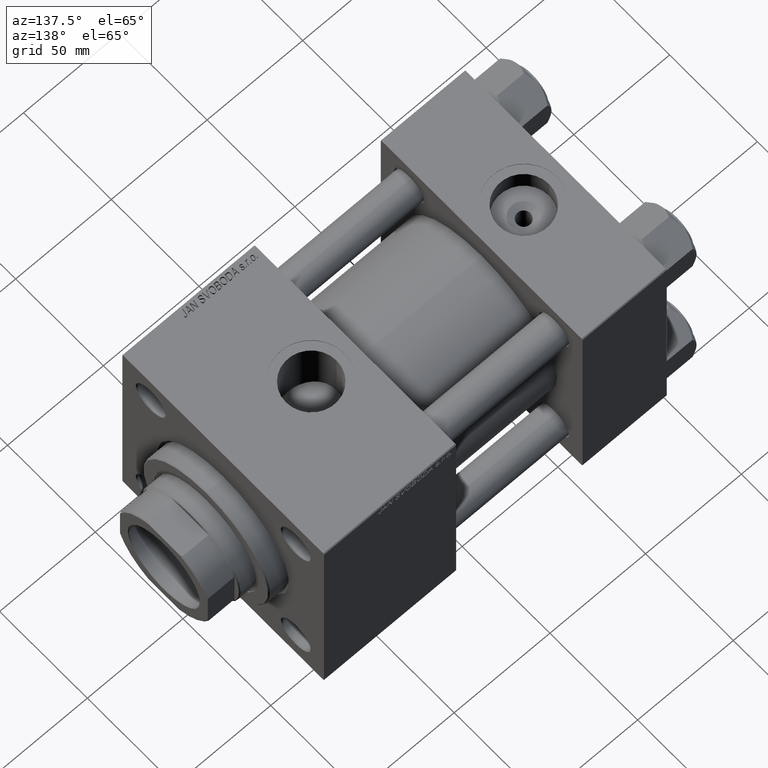
[diagram: clean part render]
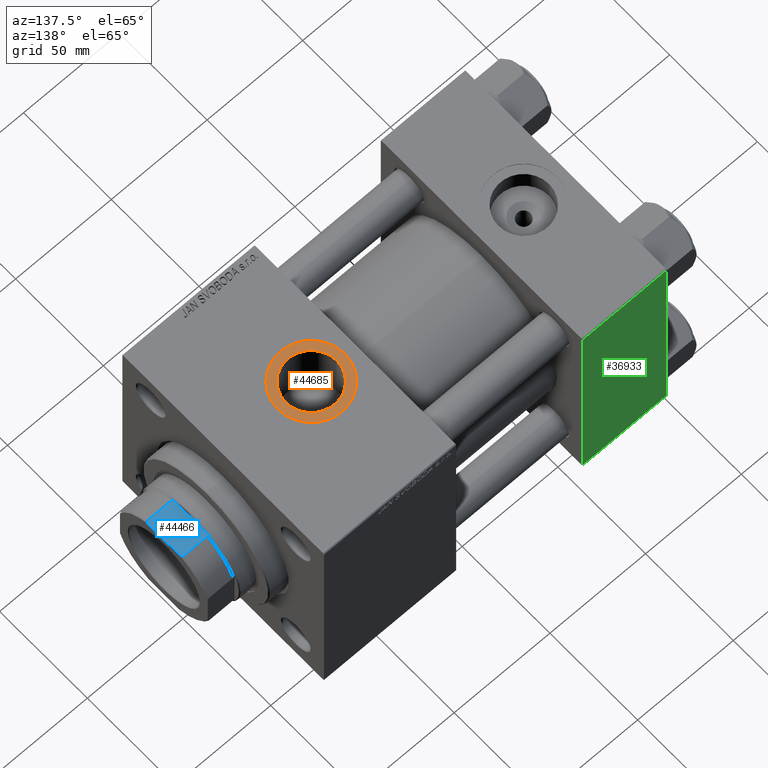
[diagram: same view with three faces highlighted in distinct colors, each labeled with its STEP entity id]
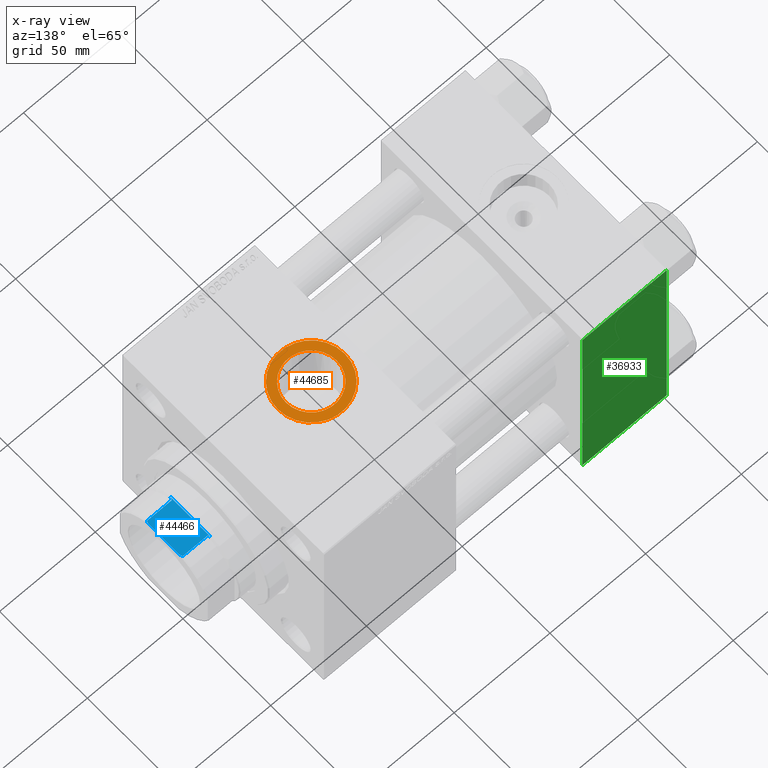
[diagram: x-ray of the same camera — body ghosted, the three highlighted faces saturated]
A machine part, auxiliary view with three faces highlighted in distinct colors.
The next image is the same camera in x-ray (body ghosted, the three faces saturated) — at least one of them is partly hidden behind the body in this view.
Their STEP definitions:

[orange] entity #44685 — the highlighted planar face has unit normal (0, 0, 1).
#142 = CARTESIAN_POINT ( 'NONE',  ( 146.2200000000000273, -5.319910835434427226E-15, 57.30000000000000426 ) ) ;
#582 = CARTESIAN_POINT ( 'NONE',  ( 133.0000000000000000, -6.938893903907229955E-15, 57.30000000000000426 ) ) ;
#772 = AXIS2_PLACEMENT_3D ( 'NONE', #14995, #2971, #38024 ) ;
#1581 = PLANE ( 'NONE',  #49398 ) ;
#2971 = DIRECTION ( 'NONE',  ( 0.000000000000000000, 0.000000000000000000, 1.000000000000000000 ) ) ;
#4433 = DIRECTION ( 'NONE',  ( 1.000000000000000000, 0.000000000000000000, 0.000000000000000000 ) ) ;
#4855 = CIRCLE ( 'NONE', #772, 17.50000000000001421 ) ;
#4899 = CARTESIAN_POINT ( 'NONE',  ( 115.4999999999999858, -4.795762005399357763E-15, 57.30000000000000426 ) ) ;
#5321 = CARTESIAN_POINT ( 'NONE',  ( 150.5000000000000284, -6.938893903907229955E-15, 57.30000000000000426 ) ) ;
#6618 = DIRECTION ( 'NONE',  ( 1.000000000000000000, 0.000000000000000000, 0.000000000000000000 ) ) ;
#8794 = ORIENTED_EDGE ( 'NONE', *, *, #16241, .T. ) ;
#10287 = CARTESIAN_POINT ( 'NONE',  ( 133.0000000000000000, -6.938893903907229955E-15, 57.30000000000000426 ) ) ;
#12943 = EDGE_CURVE ( 'NONE', #48747, #49689, #4855, .T. ) ;
#13881 = CIRCLE ( 'NONE', #42505, 13.22000000000000952 ) ;
#14826 = AXIS2_PLACEMENT_3D ( 'NONE', #43858, #23889, #4433 ) ;
#14882 = ORIENTED_EDGE ( 'NONE', *, *, #12943, .T. ) ;
#14995 = CARTESIAN_POINT ( 'NONE',  ( 133.0000000000000000, -6.938893903907229955E-15, 57.30000000000000426 ) ) ;
#16241 = EDGE_CURVE ( 'NONE', #27685, #40390, #41782, .T. ) ;
#16450 = DIRECTION ( 'NONE',  ( 0.000000000000000000, 0.000000000000000000, 1.000000000000000000 ) ) ;
#17007 = EDGE_LOOP ( 'NONE', ( #8794, #18270 ) ) ;
#17209 = DIRECTION ( 'NONE',  ( 1.000000000000000000, 0.000000000000000000, -0.000000000000000000 ) ) ;
#18270 = ORIENTED_EDGE ( 'NONE', *, *, #32005, .T. ) ;
#20536 = FACE_BOUND ( 'NONE', #17007, .T. ) ;
#22435 = AXIS2_PLACEMENT_3D ( 'NONE', #10287, #25900, #42286 ) ;
#23889 = DIRECTION ( 'NONE',  ( -0.000000000000000000, -0.000000000000000000, -1.000000000000000000 ) ) ;
#25900 = DIRECTION ( 'NONE',  ( 0.000000000000000000, 0.000000000000000000, 1.000000000000000000 ) ) ;
#27685 = VERTEX_POINT ( 'NONE', #34652 ) ;
#30410 = CARTESIAN_POINT ( 'NONE',  ( 133.0000000000000000, -6.938893903907229955E-15, 57.30000000000000426 ) ) ;
#31402 = CIRCLE ( 'NONE', #22435, 17.50000000000001421 ) ;
#31650 = ORIENTED_EDGE ( 'NONE', *, *, #47310, .T. ) ;
#32005 = EDGE_CURVE ( 'NONE', #40390, #27685, #13881, .T. ) ;
#34652 = CARTESIAN_POINT ( 'NONE',  ( 119.7800000000000011, -6.938893903907229955E-15, 57.30000000000000426 ) ) ;
#38024 = DIRECTION ( 'NONE',  ( 1.000000000000000000, 0.000000000000000000, 0.000000000000000000 ) ) ;
#40390 = VERTEX_POINT ( 'NONE', #142 ) ;
#41360 = EDGE_LOOP ( 'NONE', ( #14882, #31650 ) ) ;
#41782 = CIRCLE ( 'NONE', #14826, 13.22000000000000952 ) ;
#42286 = DIRECTION ( 'NONE',  ( 1.000000000000000000, 0.000000000000000000, 0.000000000000000000 ) ) ;
#42505 = AXIS2_PLACEMENT_3D ( 'NONE', #30410, #46059, #6618 ) ;
#43584 = FACE_OUTER_BOUND ( 'NONE', #41360, .T. ) ;
#43858 = CARTESIAN_POINT ( 'NONE',  ( 133.0000000000000000, -6.938893903907229955E-15, 57.30000000000000426 ) ) ;
#44685 = ADVANCED_FACE ( 'NONE', ( #20536, #43584 ), #1581, .T. ) ;
#46059 = DIRECTION ( 'NONE',  ( -0.000000000000000000, -0.000000000000000000, -1.000000000000000000 ) ) ;
#47310 = EDGE_CURVE ( 'NONE', #49689, #48747, #31402, .T. ) ;
#48747 = VERTEX_POINT ( 'NONE', #5321 ) ;
#49398 = AXIS2_PLACEMENT_3D ( 'NONE', #582, #16450, #17209 ) ;
#49689 = VERTEX_POINT ( 'NONE', #4899 ) ;

[blue] entity #44466 — the highlighted planar face has unit normal (0, 0, -1).
#323 = LINE ( 'NONE', #31278, #36442 ) ;
#1975 = CARTESIAN_POINT ( 'NONE',  ( -24.99999999999999289, -25.00000000000000000, 152.0000000000000000 ) ) ;
#2323 = CARTESIAN_POINT ( 'NONE',  ( 10.61981162664453038, -25.00000000000000000, 152.3406943174118737 ) ) ;
#2638 = VERTEX_POINT ( 'NONE', #8509 ) ;
#2682 = CARTESIAN_POINT ( 'NONE',  ( -11.45643923738958136, -25.00000000000000000, 152.0000000000000000 ) ) ;
#4170 = DIRECTION ( 'NONE',  ( 0.000000000000000000, 1.000000000000000000, 0.000000000000000000 ) ) ;
#4387 = ORIENTED_EDGE ( 'NONE', *, *, #7680, .F. ) ;
#5596 = CARTESIAN_POINT ( 'NONE',  ( 10.19803902718555655, -25.00000000000000000, 165.5000000000000000 ) ) ;
#7153 = CARTESIAN_POINT ( 'NONE',  ( -9.731776668926015006, -25.00000000000000000, 165.6761096935717887 ) ) ;
#7256 = FACE_OUTER_BOUND ( 'NONE', #27923, .T. ) ;
#7680 = EDGE_CURVE ( 'NONE', #46113, #2638, #26603, .T. ) ;
#8388 = CARTESIAN_POINT ( 'NONE',  ( -8.789197915623443436, -25.00000000000000000, 166.0000000000000000 ) ) ;
#8509 = CARTESIAN_POINT ( 'NONE',  ( 8.789197915623477186, -25.00000000000000000, 166.0000000000000000 ) ) ;
#9496 = CARTESIAN_POINT ( 'NONE',  ( 10.19803902718555655, -25.00000000000000000, 152.5000000000000568 ) ) ;
#10000 = CARTESIAN_POINT ( 'NONE',  ( 11.03921204036252668, -25.00000000000000000, 152.1738159283973459 ) ) ;
#10439 = ORIENTED_EDGE ( 'NONE', *, *, #45338, .T. ) ;
#10648 = ORIENTED_EDGE ( 'NONE', *, *, #24606, .T. ) ;
#11846 = PLANE ( 'NONE',  #22362 ) ;
#12630 = VECTOR ( 'NONE', #25254, 1000.000000000000000 ) ;
#17915 = DIRECTION ( 'NONE',  ( 1.000000000000000000, 0.000000000000000000, 0.000000000000000000 ) ) ;
#18244 = DIRECTION ( 'NONE',  ( -0.000000000000000000, -0.000000000000000000, 1.000000000000000000 ) ) ;
#18801 = CARTESIAN_POINT ( 'NONE',  ( -10.19803902718555655, -25.00000000000000000, 152.5000000000000568 ) ) ;
#19104 = CARTESIAN_POINT ( 'NONE',  ( -11.45643923738958136, -25.00000000000000000, 152.0000000000000000 ) ) ;
#19529 = DIRECTION ( 'NONE',  ( 0.000000000000000000, -0.000000000000000000, 1.000000000000000000 ) ) ;
#20262 = VERTEX_POINT ( 'NONE', #5596 ) ;
#21093 = CARTESIAN_POINT ( 'NONE',  ( -10.19803902718555655, -25.00000000000000000, 165.5000000000000000 ) ) ;
#21688 = LINE ( 'NONE', #1975, #12630 ) ;
#22362 = AXIS2_PLACEMENT_3D ( 'NONE', #38981, #4170, #19529 ) ;
#23046 = VECTOR ( 'NONE', #18244, 1000.000000000000000 ) ;
#24233 = CARTESIAN_POINT ( 'NONE',  ( 9.731776668926016782, -25.00000000000000000, 165.6761096935717887 ) ) ;
#24606 = EDGE_CURVE ( 'NONE', #20262, #2638, #30712, .T. ) ;
#25254 = DIRECTION ( 'NONE',  ( 1.000000000000000000, 0.000000000000000000, 0.000000000000000000 ) ) ;
#26226 = CARTESIAN_POINT ( 'NONE',  ( -10.61970411846363227, -25.00000000000000000, 152.3407349238053996 ) ) ;
#26603 = LINE ( 'NONE', #49176, #42412 ) ;
#27351 = CARTESIAN_POINT ( 'NONE',  ( -10.19803902718555655, -25.00000000000000000, 165.5000000000000000 ) ) ;
#27923 = EDGE_LOOP ( 'NONE', ( #43129, #10648, #4387, #43010, #31942, #10439, #42508, #38885 ) ) ;
#28197 = DIRECTION ( 'NONE',  ( -0.000000000000000000, -0.000000000000000000, 1.000000000000000000 ) ) ;
#28860 = CARTESIAN_POINT ( 'NONE',  ( 10.19803902718555655, -25.00000000000000000, 152.5000000000000568 ) ) ;
#28955 = EDGE_CURVE ( 'NONE', #46113, #39041, #46314, .T. ) ;
#30702 = CARTESIAN_POINT ( 'NONE',  ( -8.789197915623443436, -25.00000000000000000, 166.0000000000000000 ) ) ;
#30712 = B_SPLINE_CURVE_WITH_KNOTS ( 'NONE', 3,
 ( #39092, #24233, #35508, #32415 ),
 .UNSPECIFIED., .F., .F.,
 ( 4, 4 ),
 ( 0.000000000000000000, 0.001494935877430024658 ),
 .UNSPECIFIED. ) ;
#31278 = CARTESIAN_POINT ( 'NONE',  ( 10.19803902718555655, -25.00000000000000000, -0.001000000000001000089 ) ) ;
#31648 = EDGE_CURVE ( 'NONE', #47545, #48817, #47348, .T. ) ;
#31942 = ORIENTED_EDGE ( 'NONE', *, *, #37154, .F. ) ;
#32415 = CARTESIAN_POINT ( 'NONE',  ( 8.789197915623477186, -25.00000000000000000, 166.0000000000000000 ) ) ;
#33605 = VERTEX_POINT ( 'NONE', #40727 ) ;
#34093 = CARTESIAN_POINT ( 'NONE',  ( -10.19803902718555655, -25.00000000000000000, -0.001000000000001000089 ) ) ;
#35508 = CARTESIAN_POINT ( 'NONE',  ( 9.262276112429418617, -25.00000000000000000, 165.8430951735360850 ) ) ;
#36442 = VECTOR ( 'NONE', #28197, 1000.000000000000000 ) ;
#37154 = EDGE_CURVE ( 'NONE', #33605, #39041, #37687, .T. ) ;
#37687 = LINE ( 'NONE', #34093, #23046 ) ;
#38885 = ORIENTED_EDGE ( 'NONE', *, *, #31648, .T. ) ;
#38981 = CARTESIAN_POINT ( 'NONE',  ( -24.99999999999999289, -25.00000000000000000, 166.0000000000000000 ) ) ;
#39041 = VERTEX_POINT ( 'NONE', #21093 ) ;
#39092 = CARTESIAN_POINT ( 'NONE',  ( 10.19803902718555655, -25.00000000000000000, 165.5000000000000000 ) ) ;
#40727 = CARTESIAN_POINT ( 'NONE',  ( -10.19803902718555655, -25.00000000000000000, 152.5000000000000568 ) ) ;
#41329 = CARTESIAN_POINT ( 'NONE',  ( -11.03910869777048198, -25.00000000000000000, 152.1738589806928417 ) ) ;
#42025 = B_SPLINE_CURVE_WITH_KNOTS ( 'NONE', 3,
 ( #18801, #26226, #41329, #2682 ),
 .UNSPECIFIED., .F., .F.,
 ( 4, 4 ),
 ( 0.1247771908928544671, 0.1261173750731114096 ),
 .UNSPECIFIED. ) ;
#42412 = VECTOR ( 'NONE', #17915, 1000.000000000000000 ) ;
#42508 = ORIENTED_EDGE ( 'NONE', *, *, #47410, .T. ) ;
#42909 = CARTESIAN_POINT ( 'NONE',  ( 11.45643923738957071, -25.00000000000000000, 152.0000000000000000 ) ) ;
#43010 = ORIENTED_EDGE ( 'NONE', *, *, #28955, .T. ) ;
#43129 = ORIENTED_EDGE ( 'NONE', *, *, #50435, .T. ) ;
#44466 = ADVANCED_FACE ( 'NONE', ( #7256 ), #11846, .F. ) ;
#44834 = CARTESIAN_POINT ( 'NONE',  ( 11.45643923738957071, -25.00000000000000000, 152.0000000000000000 ) ) ;
#45338 = EDGE_CURVE ( 'NONE', #33605, #46675, #42025, .T. ) ;
#46113 = VERTEX_POINT ( 'NONE', #8388 ) ;
#46314 = B_SPLINE_CURVE_WITH_KNOTS ( 'NONE', 3,
 ( #30702, #50438, #7153, #27351 ),
 .UNSPECIFIED., .F., .F.,
 ( 4, 4 ),
 ( 1.734723475976807094E-18, 0.001494935877430055666 ),
 .UNSPECIFIED. ) ;
#46675 = VERTEX_POINT ( 'NONE', #19104 ) ;
#47348 = B_SPLINE_CURVE_WITH_KNOTS ( 'NONE', 3,
 ( #44834, #10000, #2323, #9496 ),
 .UNSPECIFIED., .F., .F.,
 ( 4, 4 ),
 ( 0.1512937174508678095, 0.1525988942206353005 ),
 .UNSPECIFIED. ) ;
#47410 = EDGE_CURVE ( 'NONE', #46675, #47545, #21688, .T. ) ;
#47545 = VERTEX_POINT ( 'NONE', #42909 ) ;
#48817 = VERTEX_POINT ( 'NONE', #28860 ) ;
#49176 = CARTESIAN_POINT ( 'NONE',  ( -24.99999999999999289, -25.00000000000000000, 166.0000000000000000 ) ) ;
#50435 = EDGE_CURVE ( 'NONE', #48817, #20262, #323, .T. ) ;
#50438 = CARTESIAN_POINT ( 'NONE',  ( -9.262276112429397301, -25.00000000000000000, 165.8430951735360850 ) ) ;

[green] entity #36933 — the highlighted planar face has unit normal (0, 1, 0).
#220 = CARTESIAN_POINT ( 'NONE',  ( 0.000000000000000000, 57.49999999999999289, 57.00000000000003553 ) ) ;
#2586 = ORIENTED_EDGE ( 'NONE', *, *, #16889, .F. ) ;
#7124 = DIRECTION ( 'NONE',  ( -1.000000000000000000, 0.000000000000000000, 0.000000000000000000 ) ) ;
#8602 = DIRECTION ( 'NONE',  ( 1.000000000000000000, 0.000000000000000000, 0.000000000000000000 ) ) ;
#9386 = VECTOR ( 'NONE', #7124, 1000.000000000000000 ) ;
#11366 = DIRECTION ( 'NONE',  ( -0.000000000000000000, 1.000000000000000000, 0.000000000000000000 ) ) ;
#12186 = CARTESIAN_POINT ( 'NONE',  ( 44.00000000000000000, 57.49999999999999289, 57.00000000000003553 ) ) ;
#13034 = VECTOR ( 'NONE', #8602, 1000.000000000000000 ) ;
#13223 = DIRECTION ( 'NONE',  ( 0.000000000000000000, 0.000000000000000000, -1.000000000000000000 ) ) ;
#14825 = CARTESIAN_POINT ( 'NONE',  ( 44.00000000000000000, 57.49999999999999289, -57.00000000000000711 ) ) ;
#15223 = FACE_OUTER_BOUND ( 'NONE', #31340, .T. ) ;
#16889 = EDGE_CURVE ( 'NONE', #48692, #27747, #33173, .T. ) ;
#19477 = EDGE_CURVE ( 'NONE', #23220, #40783, #21955, .T. ) ;
#20803 = CARTESIAN_POINT ( 'NONE',  ( 0.000000000000000000, 57.49999999999999289, -57.00000000000000711 ) ) ;
#21955 = LINE ( 'NONE', #40897, #25546 ) ;
#23220 = VERTEX_POINT ( 'NONE', #29445 ) ;
#25546 = VECTOR ( 'NONE', #36801, 1000.000000000000000 ) ;
#27747 = VERTEX_POINT ( 'NONE', #20803 ) ;
#29445 = CARTESIAN_POINT ( 'NONE',  ( 44.00000000000000000, 57.49999999999999289, 57.00000000000003553 ) ) ;
#30518 = ORIENTED_EDGE ( 'NONE', *, *, #19477, .T. ) ;
#31324 = EDGE_CURVE ( 'NONE', #48692, #23220, #47291, .T. ) ;
#31340 = EDGE_LOOP ( 'NONE', ( #30518, #48611, #2586, #42930 ) ) ;
#33173 = LINE ( 'NONE', #44212, #40119 ) ;
#34249 = LINE ( 'NONE', #14825, #9386 ) ;
#34909 = PLANE ( 'NONE',  #41851 ) ;
#36647 = CARTESIAN_POINT ( 'NONE',  ( 44.00000000000000000, 57.49999999999999289, -57.00000000000000711 ) ) ;
#36801 = DIRECTION ( 'NONE',  ( 0.000000000000000000, 0.000000000000000000, -1.000000000000000000 ) ) ;
#36933 = ADVANCED_FACE ( 'NONE', ( #15223 ), #34909, .T. ) ;
#40119 = VECTOR ( 'NONE', #13223, 1000.000000000000000 ) ;
#40783 = VERTEX_POINT ( 'NONE', #36647 ) ;
#40897 = CARTESIAN_POINT ( 'NONE',  ( 44.00000000000000000, 57.49999999999999289, 57.50000000000000711 ) ) ;
#41851 = AXIS2_PLACEMENT_3D ( 'NONE', #46468, #11366, #42609 ) ;
#42609 = DIRECTION ( 'NONE',  ( 0.000000000000000000, -0.000000000000000000, 1.000000000000000000 ) ) ;
#42930 = ORIENTED_EDGE ( 'NONE', *, *, #31324, .T. ) ;
#43760 = EDGE_CURVE ( 'NONE', #40783, #27747, #34249, .T. ) ;
#44212 = CARTESIAN_POINT ( 'NONE',  ( 0.000000000000000000, 57.49999999999999289, 57.50000000000000711 ) ) ;
#46468 = CARTESIAN_POINT ( 'NONE',  ( 44.00000000000000000, 57.49999999999999289, 57.50000000000000711 ) ) ;
#47291 = LINE ( 'NONE', #12186, #13034 ) ;
#48611 = ORIENTED_EDGE ( 'NONE', *, *, #43760, .T. ) ;
#48692 = VERTEX_POINT ( 'NONE', #220 ) ;